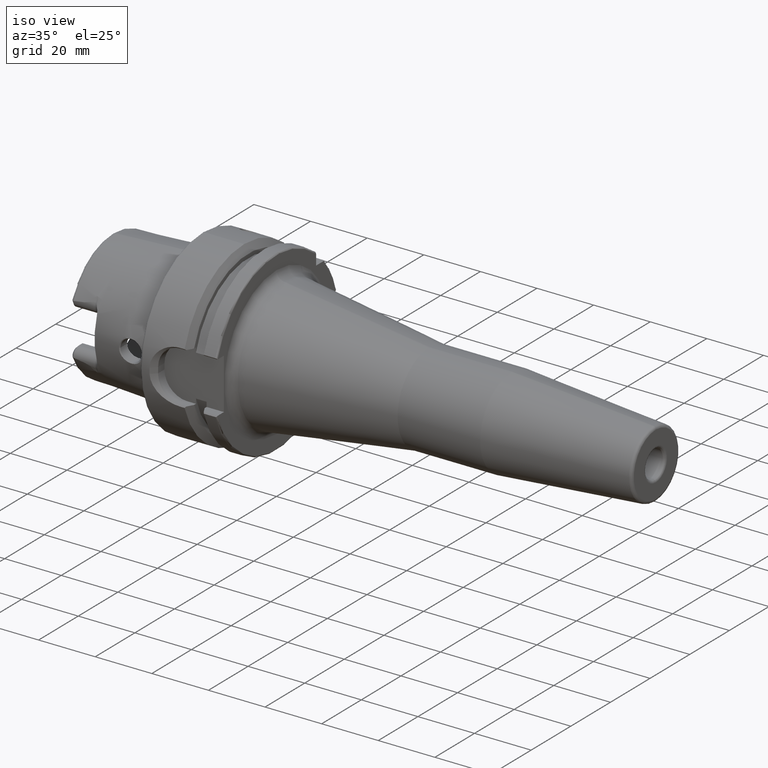
[diagram: clean part render]
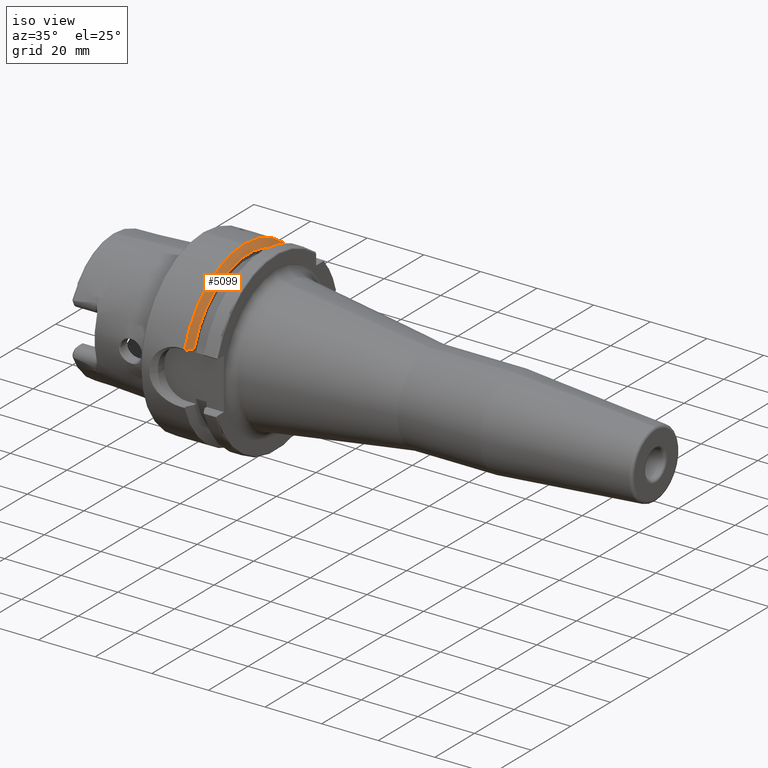
[diagram: same view with one face highlighted and labeled with its STEP entity id]
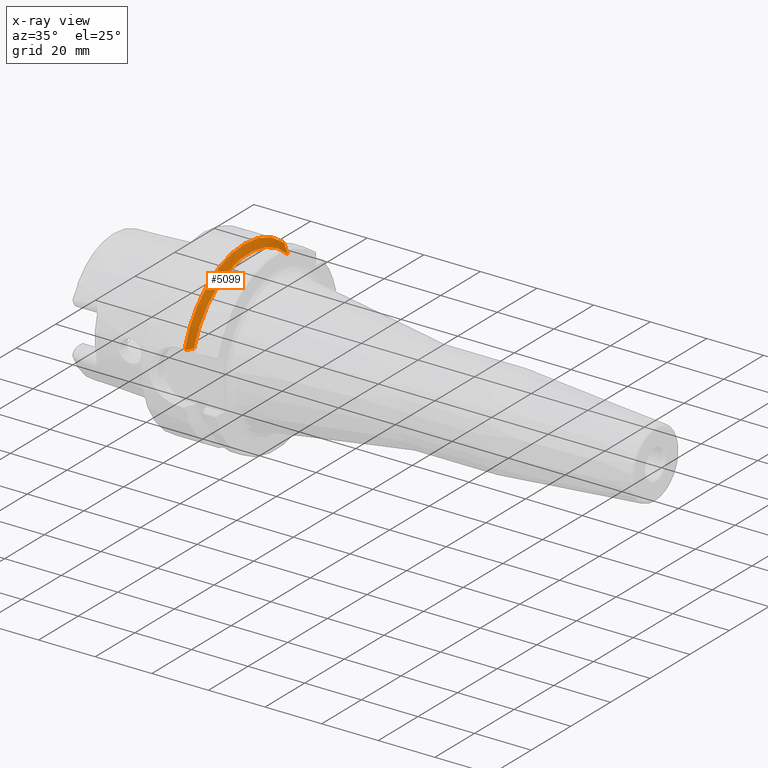
[diagram: x-ray of the same camera — body ghosted, the highlighted face saturated]
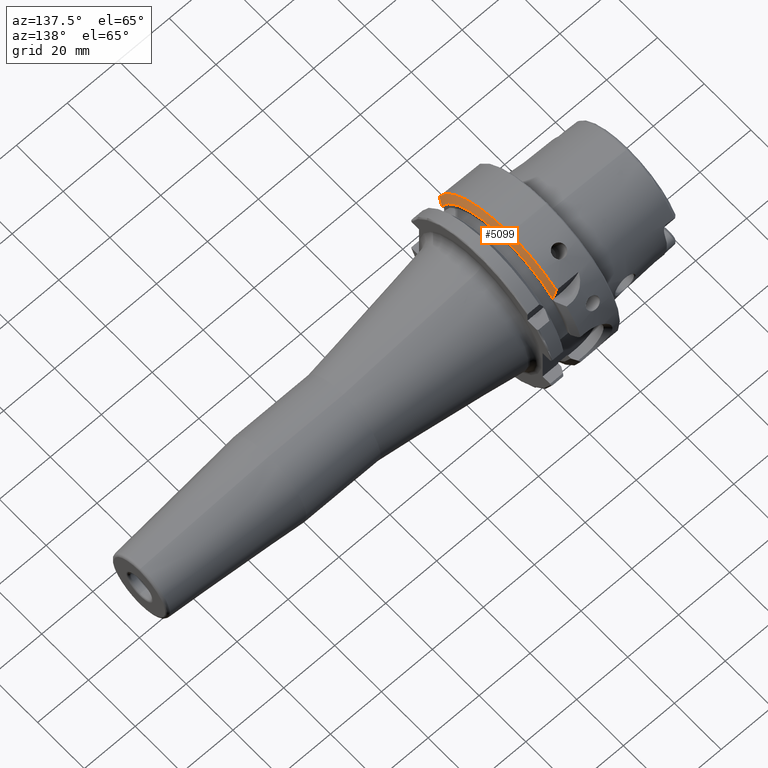
[diagram: same view with one face highlighted and labeled with its STEP entity id]
A machine part, iso view. The second image highlights one B-rep face of the part: STEP entity #5099.
The next image is the same camera in x-ray: the body ghosted, the highlighted face saturated — about 0% of this face is hidden behind the body in this view.
A second angle (auxiliary view) of the same face is appended — the face is thin or edge-on in the first view.
In plain terms, the highlighted conical surface has half-angle 60 deg.
Its self-contained STEP definition (entity closure, byte-faithful):
#751=CARTESIAN_POINT('',(1.462250090457E1,0.E0,0.E0));
#752=DIRECTION('',(1.E0,0.E0,0.E0));
#753=DIRECTION('',(0.E0,0.E0,1.E0));
#754=AXIS2_PLACEMENT_3D('',#751,#752,#753);
#935=CARTESIAN_POINT('',(1.462250090457E1,0.E0,0.E0));
#936=DIRECTION('',(1.E0,0.E0,0.E0));
#937=DIRECTION('',(0.E0,6.349206349206E-1,7.725773665802E-1));
#938=AXIS2_PLACEMENT_3D('',#935,#936,#937);
#1912=CARTESIAN_POINT('',(1.462250090457E1,-3.007314630073E1,9.373146300730E0));
#1913=CARTESIAN_POINT('',(1.466777137486E1,-3.001053107025E1,9.310531070255E0));
#1914=CARTESIAN_POINT('',(1.475791251295E1,-2.988572482499E1,9.185724824995E0));
#1915=CARTESIAN_POINT('',(1.484725375035E1,-2.976176690400E1,9.061766903997E0));
#1916=CARTESIAN_POINT('',(1.489172432548E1,-2.97E1,9.E0));
#1918=CARTESIAN_POINT('',(1.6125E1,2.E1,2.085835597842E1));
#1919=CARTESIAN_POINT('',(1.597263395735E1,2.E1,2.122397638976E1));
#1920=CARTESIAN_POINT('',(1.565826960383E1,2.E1,2.196910957739E1));
#1921=CARTESIAN_POINT('',(1.515798179355E1,2.E1,2.312741859196E1));
#1922=CARTESIAN_POINT('',(1.480432315424E1,2.E1,2.392855749541E1));
#1923=CARTESIAN_POINT('',(1.462250090457E1,2.E1,2.433618704728E1));
#1925=CARTESIAN_POINT('',(1.6125E1,0.E0,0.E0));
#1926=DIRECTION('',(1.E0,0.E0,0.E0));
#1927=DIRECTION('',(0.E0,6.920991104059E-1,7.218024808598E-1));
#1928=AXIS2_PLACEMENT_3D('',#1925,#1926,#1927);
#1930=CARTESIAN_POINT('',(1.6125E1,-2.746035349595E1,9.E0));
#1931=CARTESIAN_POINT('',(1.599184268889E1,-2.770305988738E1,9.E0));
#1932=CARTESIAN_POINT('',(1.572294078043E1,-2.819256428175E1,9.E0));
#1933=CARTESIAN_POINT('',(1.531187997018E1,-2.893903747046E1,9.E0));
#1934=CARTESIAN_POINT('',(1.503263735229E1,-2.944497148241E1,9.E0));
#1935=CARTESIAN_POINT('',(1.489172432548E1,-2.97E1,9.E0));
#2657=CARTESIAN_POINT('',(1.6125E1,-2.746035349595E1,9.E0));
#2658=VERTEX_POINT('',#2657);
#2680=CARTESIAN_POINT('',(1.462250090457E1,2.E1,2.433618704728E1));
#2682=VERTEX_POINT('',#2680);
#2687=VERTEX_POINT('',#1918);
#2699=CARTESIAN_POINT('',(1.462250090457E1,0.E0,3.15E1));
#2700=VERTEX_POINT('',#2699);
#2883=CARTESIAN_POINT('',(1.462250090457E1,-3.007314630073E1,9.373146300730E0));
#2884=VERTEX_POINT('',#2883);
#2886=VERTEX_POINT('',#1916);
#5082=CARTESIAN_POINT('',(1.537375045228E1,0.E0,0.E0));
#5083=DIRECTION('',(-1.E0,0.E0,0.E0));
#5084=DIRECTION('',(0.E0,0.E0,-1.E0));
#5085=AXIS2_PLACEMENT_3D('',#5082,#5083,#5084);
#5086=CONICAL_SURFACE('',#5085,3.019879765E1,5.999999931725E1);
#5088=ORIENTED_EDGE('',*,*,#5087,.F.);
#5089=ORIENTED_EDGE('',*,*,#3882,.F.);
#5090=ORIENTED_EDGE('',*,*,#3962,.F.);
#5092=ORIENTED_EDGE('',*,*,#5091,.F.);
#5094=ORIENTED_EDGE('',*,*,#5093,.T.);
#5096=ORIENTED_EDGE('',*,*,#5095,.T.);
#5097=EDGE_LOOP('',(#5088,#5089,#5090,#5092,#5094,#5096));
#5098=FACE_OUTER_BOUND('',#5097,.F.);
#5099=ADVANCED_FACE('',(#5098),#5086,.T.);
#755=CIRCLE('',#754,3.15E1);
#939=CIRCLE('',#938,3.15E1);
#1917=B_SPLINE_CURVE_WITH_KNOTS('',3,(#1912,#1913,#1914,#1915,#1916),
.UNSPECIFIED.,.F.,.F.,(4,1,4),(0.E0,5.E-1,1.E0),.UNSPECIFIED.);
#1924=B_SPLINE_CURVE_WITH_KNOTS('',3,(#1918,#1919,#1920,#1921,#1922,#1923),
.UNSPECIFIED.,.F.,.F.,(4,1,1,4),(0.E0,3.333333333333E-1,6.666666666667E-1,1.E0),
.UNSPECIFIED.);
#1929=CIRCLE('',#1928,2.88975953E1);
#1936=B_SPLINE_CURVE_WITH_KNOTS('',3,(#1930,#1931,#1932,#1933,#1934,#1935),
.UNSPECIFIED.,.F.,.F.,(4,1,1,4),(0.E0,3.333333333333E-1,6.666666666667E-1,1.E0),
.UNSPECIFIED.);
#3882=EDGE_CURVE('',#2700,#2884,#755,.T.);
#3962=EDGE_CURVE('',#2682,#2700,#939,.T.);
#5087=EDGE_CURVE('',#2884,#2886,#1917,.T.);
#5091=EDGE_CURVE('',#2687,#2682,#1924,.T.);
#5093=EDGE_CURVE('',#2687,#2658,#1929,.T.);
#5095=EDGE_CURVE('',#2658,#2886,#1936,.T.);